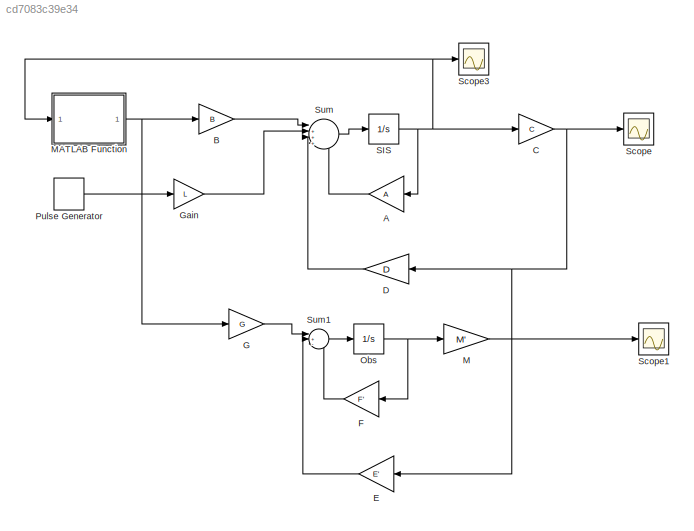
MODEL slx_cd7083c39e34
KIND model
CONFIG AbsTol = auto
CONFIG EnableMultiTasking = off
CONFIG FixedStep = auto
CONFIG MaxStep = auto
CONFIG MinStep = auto
CONFIG RelTol = 1e-3
CONFIG SampleTimeConstraint = Unconstrained
CONFIG SolverName = VariableStepAuto
CONFIG StartTime = 0.0
CONFIG StopTime = 10.0
BLOCK [Gain] A
  Gain = A
  Multiplication = Matrix(K*u)
BLOCK [Gain] B
  Gain = B
  Multiplication = Matrix(K*u)
BLOCK [Gain] C
  Gain = C
  Multiplication = Matrix(K*u)
BLOCK [Gain] D
  Gain = D
  Multiplication = Matrix(K*u)
BLOCK [Gain] E
  Gain = E'
  Multiplication = Matrix(K*u)
BLOCK [Gain] F
  Gain = F'
  Multiplication = Matrix(K*u)
BLOCK [Gain] G
  Gain = G
  Multiplication = Matrix(K*u)
BLOCK [Gain] Gain
  Gain = L
BLOCK [Gain] M
  Gain = M'
  Multiplication = Matrix(K*u)
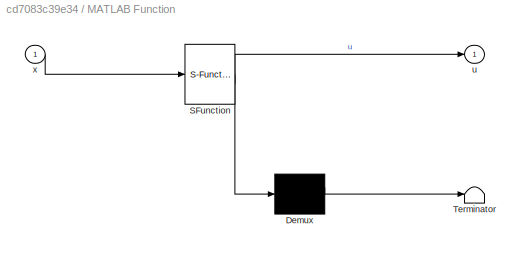
BLOCK [SubSystem] MATLAB Function
  ErrorFcn = Stateflow.Translate.translate
  LibrarySourceBlock = simulink/User-Defined\nFunctions/MATLAB Function
  PermitHierarchicalResolution = ExplicitOnly
  SFBlockType = MATLAB Function
  TreatAsAtomicUnit = on
BLOCK [Demux] MATLAB Function/ Demux 
  Outputs = 1
BLOCK [S-Function] MATLAB Function/ SFunction 
  EnableBusSupport = on
  FunctionName = sf_sfun
  PortCounts = [1 2]
  SFcnIsStateOwnerBlock = off
  SFunctionDeploymentMode = off
  Tag = Stateflow S-Function 2
BLOCK [Terminator] MATLAB Function/ Terminator 
BLOCK [Outport] MATLAB Function/u
BLOCK [Inport] MATLAB Function/x
BLOCK [Integrator] Obs
  InitialCondition = [1;1]
BLOCK [DiscretePulseGenerator] Pulse Generator
  Period = 10
  PulseType = Time based
  PulseWidth = 5
BLOCK [Integrator] SIS
  InitialCondition = [1;1;1]
BLOCK [Scope] Scope
  Floating = off
  NumInputPorts = 1
  ScopeSpecificationString = Simulink.scopes.TimeScopeBlockCfg('CurrentConfiguration', extmgr.ConfigurationSet(extmgr.Configuration('Core','General UI',true),extmgr.Configuration('Core','Source UI',true),extmgr.Configuration('Sources','WiredSimulink',true),extmgr.Configuration('Visuals','Time Domain',true,'SerializedDisplays',{struct('MinYLimReal','-477596963.03224','MaxYLimReal','53066330.4256','YLabelReal','','MinYLimMag','...<+1651ch>
BLOCK [Scope] Scope1
  Floating = off
  NumInputPorts = 1
  ScopeSpecificationString = Simulink.scopes.TimeScopeBlockCfg('CurrentConfiguration', extmgr.ConfigurationSet(extmgr.Configuration('Core','General UI',true),extmgr.Configuration('Core','Source UI',true),extmgr.Configuration('Sources','WiredSimulink',true,'DataLoggingVariableName','ScopeData1'),extmgr.Configuration('Visuals','Time Domain',true,'SerializedDisplays',{struct('MinYLimReal','-0.25','MaxYLimReal','12.25','YLabelRea...<+1442ch>
BLOCK [Scope] Scope3
  Floating = off
  NumInputPorts = 1
  ScopeSpecificationString = Simulink.scopes.TimeScopeBlockCfg('CurrentConfiguration', extmgr.ConfigurationSet(extmgr.Configuration('Core','General UI',true),extmgr.Configuration('Core','Source UI',true),extmgr.Configuration('Sources','WiredSimulink',true,'DataLoggingVariableName','ScopeData3'),extmgr.Configuration('Visuals','Time Domain',true,'SerializedDisplays',{struct('MinYLimReal','-2.93027','MaxYLimReal','1.59161','YLab...<+1407ch>
BLOCK [Sum] Sum
  Inputs = |++++
BLOCK [Sum] Sum1
  Inputs = |+-+
LINE A:1 -> Sum:4
LINE B:1 -> Sum:1
NET C:1 -> D:1, E:1, Scope:1
LINE D:1 -> Sum:3
LINE E:1 -> Sum1:2
LINE F:1 -> Sum1:3
LINE G:1 -> Sum1:1
LINE Gain:1 -> Sum:2
LINE M:1 -> Scope1:1
NET MATLAB Function:1 -> B:1, G:1
NET Obs:1 -> F:1, M:1
LINE Pulse Generator:1 -> Gain:1
NET SIS:1 -> A:1, C:1, MATLAB Function:1, Scope3:1
LINE Sum1:1 -> Obs:1
LINE Sum:1 -> SIS:1
note: NET lines group one-source signal fan-out (src -> all destinations, sorted); 1:1 wires keep LINE
CHART MATLAB Function states=1 transitions=1
  STATE_LABEL 'eML_blk_kernel()'
  STATE_LABEL 'SCRIPT:\nfunction u = fcn(x)\nR=[20 4 0];\nu = -R*x;\n'
CHART  states=0 transitions=0
